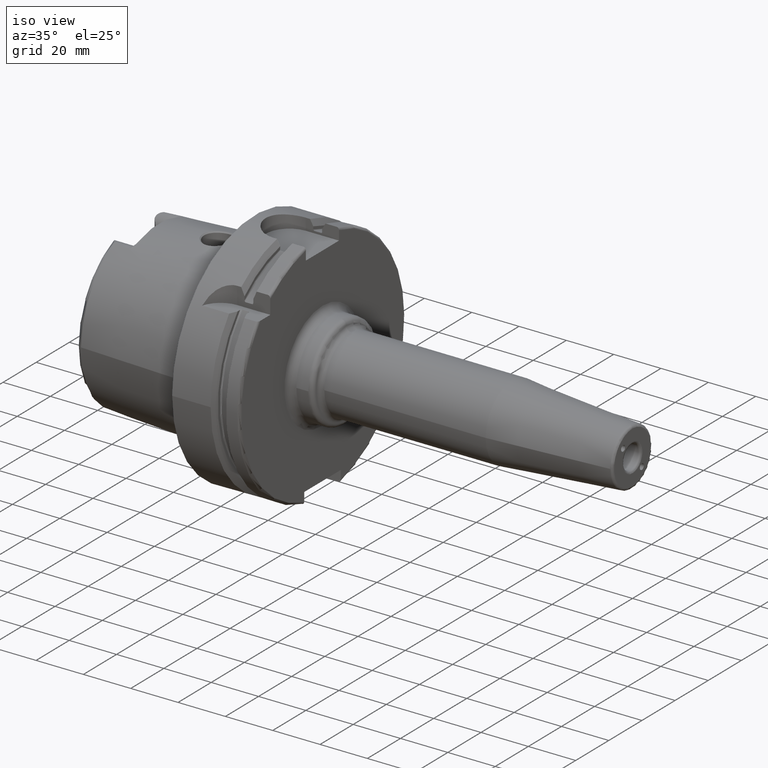
[diagram: clean part render]
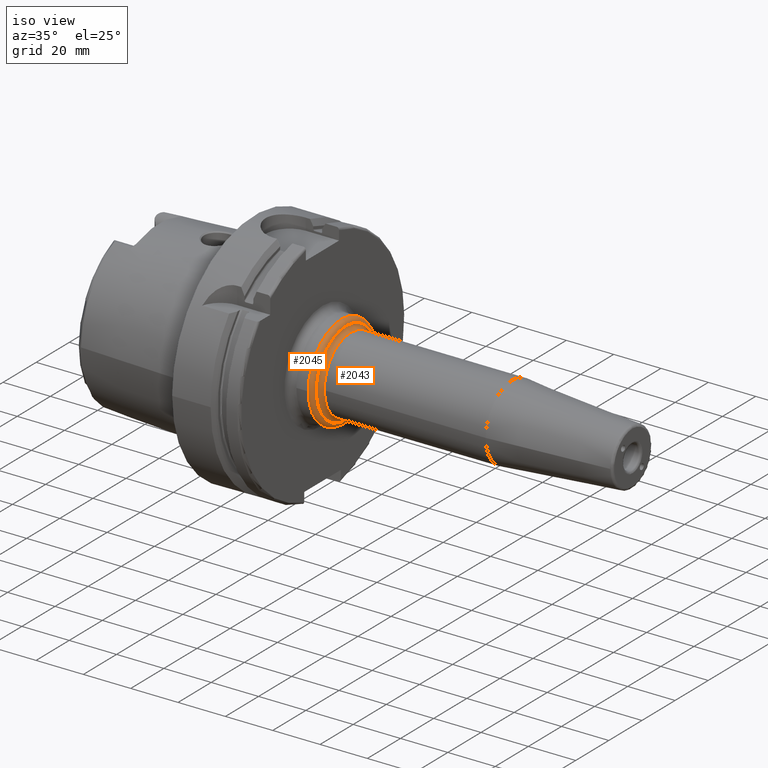
[diagram: same view with one multi-face feature highlighted, each face labeled with its STEP entity id]
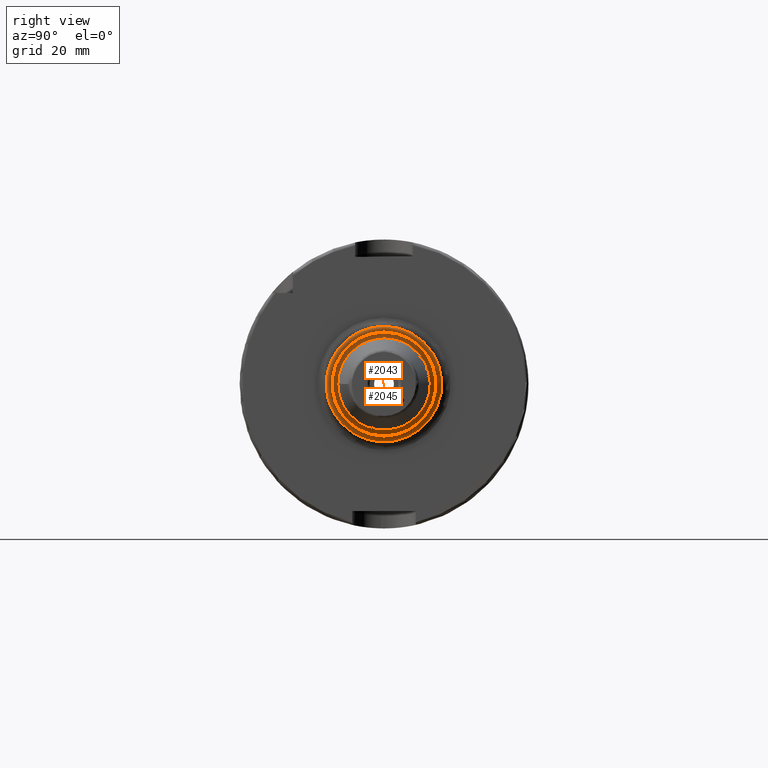
[diagram: same view with one multi-face feature highlighted, each face labeled with its STEP entity id]
A machine part, iso view. The highlighted faces form ONE feature: a constant-radius fillet chain: 2 tangent blend faces with common blend radius 2 mm. The faces share edges in the B-rep.
A second angle (right view) of the same feature is appended — it is thin or edge-on in the first view.
Their STEP definitions:
[1] entity #2045 (Torus):
#139=TOROIDAL_SURFACE('',#2209,18.,2.);
#223=FACE_OUTER_BOUND('',#349,.T.);
#349=EDGE_LOOP('',(#1413,#1414,#1415,#1416,#1417));
#699=CIRCLE('',#2204,18.);
#703=CIRCLE('',#2210,2.);
#704=CIRCLE('',#2211,20.);
#705=CIRCLE('',#2212,20.);
#841=VERTEX_POINT('',#3148);
#844=VERTEX_POINT('',#3158);
#845=VERTEX_POINT('',#3160);
#1059=EDGE_CURVE('',#841,#841,#699,.T.);
#1064=EDGE_CURVE('',#841,#844,#703,.T.);
#1065=EDGE_CURVE('',#844,#845,#704,.T.);
#1066=EDGE_CURVE('',#845,#844,#705,.T.);
#1413=ORIENTED_EDGE('',*,*,#1059,.T.);
#1414=ORIENTED_EDGE('',*,*,#1064,.T.);
#1415=ORIENTED_EDGE('',*,*,#1065,.T.);
#1416=ORIENTED_EDGE('',*,*,#1066,.T.);
#1417=ORIENTED_EDGE('',*,*,#1064,.F.);
#2045=ADVANCED_FACE('',(#223),#139,.T.);
#2204=AXIS2_PLACEMENT_3D('',#3149,#2507,#2508);
#2209=AXIS2_PLACEMENT_3D('',#3157,#2518,#2519);
#2210=AXIS2_PLACEMENT_3D('',#3159,#2520,#2521);
#2211=AXIS2_PLACEMENT_3D('',#3161,#2522,#2523);
#2212=AXIS2_PLACEMENT_3D('',#3162,#2524,#2525);
#2507=DIRECTION('center_axis',(-1.,0.,0.));
#2508=DIRECTION('ref_axis',(0.,-1.,1.83697019872103E-16));
#2518=DIRECTION('center_axis',(1.,0.,0.));
#2519=DIRECTION('ref_axis',(0.,0.,-1.));
#2520=DIRECTION('center_axis',(0.,-1.,-1.22464679914735E-16));
#2521=DIRECTION('ref_axis',(0.,-1.22464679914735E-16,1.));
#2522=DIRECTION('center_axis',(1.,0.,0.));
#2523=DIRECTION('ref_axis',(0.,-1.,1.83697019872103E-16));
#2524=DIRECTION('center_axis',(1.,0.,0.));
#2525=DIRECTION('ref_axis',(0.,-1.,1.83697019872103E-16));
#3148=CARTESIAN_POINT('',(39.,-2.20436423846524E-15,18.));
#3149=CARTESIAN_POINT('Origin',(39.,0.,0.));
#3157=CARTESIAN_POINT('Origin',(37.,0.,0.));
#3158=CARTESIAN_POINT('',(37.,-2.44929359829471E-15,20.));
#3159=CARTESIAN_POINT('Origin',(37.,-2.20436423846524E-15,18.));
#3160=CARTESIAN_POINT('',(37.,-20.,-2.44929359829471E-15));
#3161=CARTESIAN_POINT('Origin',(37.,0.,0.));
#3162=CARTESIAN_POINT('Origin',(37.,0.,0.));
[2] entity #2043 (Torus):
#138=TOROIDAL_SURFACE('',#2203,18.,2.);
#221=FACE_OUTER_BOUND('',#347,.T.);
#347=EDGE_LOOP('',(#1403,#1404,#1405,#1406,#1407));
#699=CIRCLE('',#2204,18.);
#700=CIRCLE('',#2205,2.);
#701=CIRCLE('',#2206,16.);
#702=CIRCLE('',#2207,16.);
#841=VERTEX_POINT('',#3148);
#842=VERTEX_POINT('',#3150);
#843=VERTEX_POINT('',#3152);
#1059=EDGE_CURVE('',#841,#841,#699,.T.);
#1060=EDGE_CURVE('',#841,#842,#700,.T.);
#1061=EDGE_CURVE('',#842,#843,#701,.T.);
#1062=EDGE_CURVE('',#843,#842,#702,.T.);
#1403=ORIENTED_EDGE('',*,*,#1059,.F.);
#1404=ORIENTED_EDGE('',*,*,#1060,.T.);
#1405=ORIENTED_EDGE('',*,*,#1061,.T.);
#1406=ORIENTED_EDGE('',*,*,#1062,.T.);
#1407=ORIENTED_EDGE('',*,*,#1060,.F.);
#2043=ADVANCED_FACE('',(#221),#138,.F.);
#2203=AXIS2_PLACEMENT_3D('',#3147,#2505,#2506);
#2204=AXIS2_PLACEMENT_3D('',#3149,#2507,#2508);
#2205=AXIS2_PLACEMENT_3D('',#3151,#2509,#2510);
#2206=AXIS2_PLACEMENT_3D('',#3153,#2511,#2512);
#2207=AXIS2_PLACEMENT_3D('',#3154,#2513,#2514);
#2505=DIRECTION('center_axis',(1.,0.,0.));
#2506=DIRECTION('ref_axis',(0.,0.,-1.));
#2507=DIRECTION('center_axis',(-1.,0.,0.));
#2508=DIRECTION('ref_axis',(0.,-1.,1.83697019872103E-16));
#2509=DIRECTION('center_axis',(0.,-1.,-1.22464679914735E-16));
#2510=DIRECTION('ref_axis',(0.,-1.22464679914735E-16,1.));
#2511=DIRECTION('center_axis',(-1.,0.,0.));
#2512=DIRECTION('ref_axis',(0.,-1.,1.83697019872103E-16));
#2513=DIRECTION('center_axis',(-1.,0.,0.));
#2514=DIRECTION('ref_axis',(0.,-1.,1.83697019872103E-16));
#3147=CARTESIAN_POINT('Origin',(41.,0.,0.));
#3148=CARTESIAN_POINT('',(39.,-2.20436423846524E-15,18.));
#3149=CARTESIAN_POINT('Origin',(39.,0.,0.));
#3150=CARTESIAN_POINT('',(41.,-1.95943487863576E-15,16.));
#3151=CARTESIAN_POINT('Origin',(41.,-2.20436423846524E-15,18.));
#3152=CARTESIAN_POINT('',(41.,-16.,-1.95943487863576E-15));
#3153=CARTESIAN_POINT('Origin',(41.,0.,0.));
#3154=CARTESIAN_POINT('Origin',(41.,0.,0.));